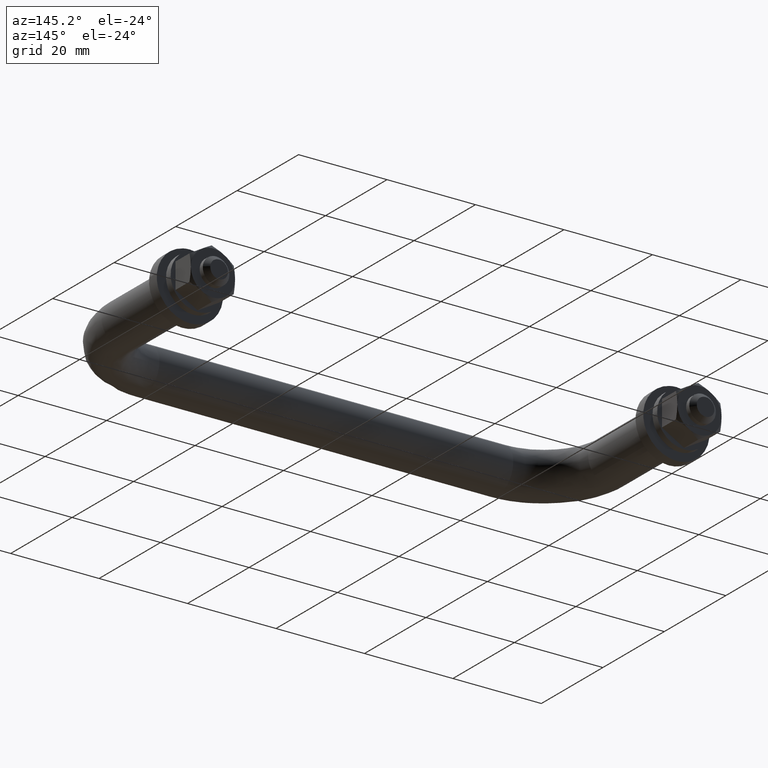
[diagram: clean part render]
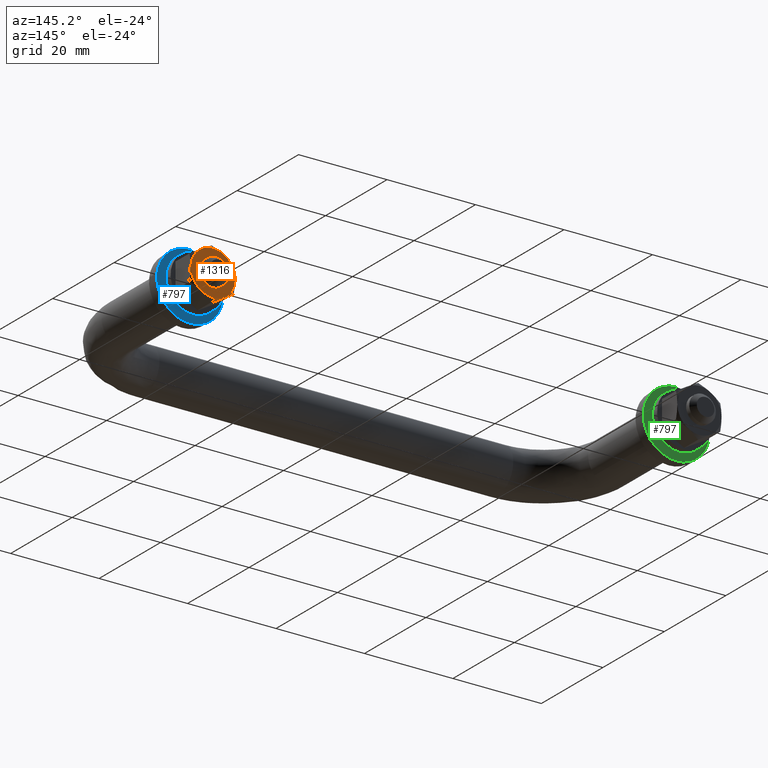
[diagram: same view with three faces highlighted in distinct colors, each labeled with its STEP entity id]
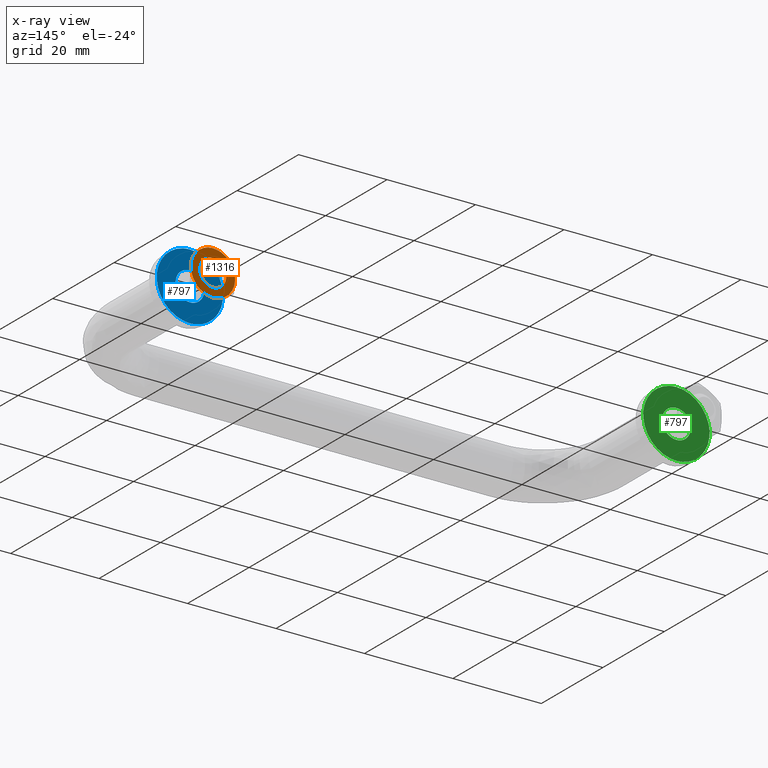
[diagram: x-ray of the same camera — body ghosted, the three highlighted faces saturated]
A machine part, auxiliary view with three faces highlighted in distinct colors.
The next image is the same camera in x-ray (body ghosted, the three faces saturated) — at least one of them is partly hidden behind the body in this view.
Their STEP definitions:

[orange] entity #1316 — the highlighted face is a freeform B-spline surface patch.
#895=CARTESIAN_POINT('',(2.994404395243879,9.000000000000117,-0.183145618959712));
#896=VERTEX_POINT('',#895);
#902=CARTESIAN_POINT('',(0.0,9.000000000000119,-3.0));
#903=VERTEX_POINT('',#902);
#904=CARTESIAN_POINT('',(0.0,9.000000000000119,-3.0));
#905=CARTESIAN_POINT('',(2.822118200046421,9.000000000000119,-3.0));
#906=CARTESIAN_POINT('',(2.994404395243879,9.000000000000117,-0.183145618959712));
#914=(BOUNDED_CURVE()B_SPLINE_CURVE(2,(#904,#905,#906),.UNSPECIFIED.,.F.,.U.)B_SPLINE_CURVE_WITH_KNOTS((3,3),(0.500000000000000,0.739332962201040),.UNSPECIFIED.)CURVE()GEOMETRIC_REPRESENTATION_ITEM()RATIONAL_B_SPLINE_CURVE((1.0,0.719603993331116,0.976072041585484))REPRESENTATION_ITEM(''));
#915=EDGE_CURVE('',#903,#896,#914,.T.);
#917=CARTESIAN_POINT('',(-2.979028579072036,9.000000000000119,0.354102704129811));
#918=VERTEX_POINT('',#917);
#919=CARTESIAN_POINT('',(-2.979028579072035,9.000000000000119,0.354102704129811));
#920=CARTESIAN_POINT('',(-3.000000000000000,9.000000000000119,0.177672359116953));
#921=CARTESIAN_POINT('',(-3.0,9.000000000000119,0.0));
#922=CARTESIAN_POINT('',(-3.0,9.000000000000119,-3.0));
#923=CARTESIAN_POINT('',(0.0,9.000000000000119,-3.0));
#931=(BOUNDED_CURVE()B_SPLINE_CURVE(2,(#919,#920,#921,#922,#923),.UNSPECIFIED.,.F.,.U.)B_SPLINE_CURVE_WITH_KNOTS((3,2,3),(0.229562473497543,0.250000000000000,0.500000000000000),.UNSPECIFIED.)CURVE()GEOMETRIC_REPRESENTATION_ITEM()RATIONAL_B_SPLINE_CURVE((0.956026754152407,0.976055948312440,1.0,0.707106781186548,1.0))REPRESENTATION_ITEM(''));
#932=EDGE_CURVE('',#918,#903,#931,.T.);
#976=CARTESIAN_POINT('',(0.0,9.000000000000119,3.0));
#977=VERTEX_POINT('',#976);
#978=CARTESIAN_POINT('',(0.0,9.000000000000119,3.0));
#979=CARTESIAN_POINT('',(-2.664523577566709,9.000000000000119,3.000000000000000));
#980=CARTESIAN_POINT('',(-2.979028579072036,9.000000000000119,0.354102704129811));
#988=(BOUNDED_CURVE()B_SPLINE_CURVE(2,(#978,#979,#980),.UNSPECIFIED.,.F.,.U.)B_SPLINE_CURVE_WITH_KNOTS((3,3),(0.0,0.229562473497543),.UNSPECIFIED.)CURVE()GEOMETRIC_REPRESENTATION_ITEM()RATIONAL_B_SPLINE_CURVE((1.0,0.731050832874107,0.956026754152407))REPRESENTATION_ITEM(''));
#989=EDGE_CURVE('',#977,#918,#988,.T.);
#991=CARTESIAN_POINT('',(2.994404395243879,9.000000000000117,-0.183145618959712));
#992=CARTESIAN_POINT('',(3.000000000000000,9.000000000000121,-0.091658290251904));
#993=CARTESIAN_POINT('',(3.0,9.000000000000119,0.0));
#994=CARTESIAN_POINT('',(3.0,9.000000000000119,3.0));
#995=CARTESIAN_POINT('',(0.0,9.000000000000119,3.0));
#1003=(BOUNDED_CURVE()B_SPLINE_CURVE(2,(#991,#992,#993,#994,#995),.UNSPECIFIED.,.F.,.U.)B_SPLINE_CURVE_WITH_KNOTS((3,2,3),(0.739332962201040,0.750000000000000,1.0),.UNSPECIFIED.)CURVE()GEOMETRIC_REPRESENTATION_ITEM()RATIONAL_B_SPLINE_CURVE((0.976072041585484,0.987502787855431,1.0,0.707106781186548,1.0))REPRESENTATION_ITEM(''));
#1004=EDGE_CURVE('',#896,#977,#1003,.T.);
#1045=CARTESIAN_POINT('',(-5.0,9.0,-2.571673E-015));
#1046=VERTEX_POINT('',#1045);
#1060=CARTESIAN_POINT('',(5.0,9.0,-2.571673E-015));
#1061=VERTEX_POINT('',#1060);
#1062=CARTESIAN_POINT('',(5.0,9.0,-2.571673E-015));
#1063=CARTESIAN_POINT('',(5.000000000000001,9.000000000000002,-5.000000000000003));
#1064=CARTESIAN_POINT('',(0.0,9.0,-5.000000000000003));
#1065=CARTESIAN_POINT('',(-5.000000000000001,9.000000000000002,-5.000000000000003));
#1066=CARTESIAN_POINT('',(-5.0,9.0,-2.571673E-015));
#1074=(BOUNDED_CURVE()B_SPLINE_CURVE(2,(#1062,#1063,#1064,#1065,#1066),.UNSPECIFIED.,.F.,.U.)B_SPLINE_CURVE_WITH_KNOTS((3,2,3),(0.0,0.500000000000000,1.0),.UNSPECIFIED.)CURVE()GEOMETRIC_REPRESENTATION_ITEM()RATIONAL_B_SPLINE_CURVE((1.0,0.707106781186548,1.0,0.707106781186548,1.0))REPRESENTATION_ITEM(''));
#1075=EDGE_CURVE('',#1061,#1046,#1074,.T.);
#1212=CARTESIAN_POINT('',(5.0,9.0,-2.571673E-015));
#1213=CARTESIAN_POINT('',(5.000000000000001,9.000000000000002,4.999999999999997));
#1214=CARTESIAN_POINT('',(0.0,9.0,4.999999999999997));
#1215=CARTESIAN_POINT('',(-5.000000000000001,9.000000000000002,4.999999999999997));
#1216=CARTESIAN_POINT('',(-5.0,9.0,-2.571673E-015));
#1224=(BOUNDED_CURVE()B_SPLINE_CURVE(2,(#1212,#1213,#1214,#1215,#1216),.UNSPECIFIED.,.F.,.U.)B_SPLINE_CURVE_WITH_KNOTS((3,2,3),(0.0,0.500000000000000,1.0),.UNSPECIFIED.)CURVE()GEOMETRIC_REPRESENTATION_ITEM()RATIONAL_B_SPLINE_CURVE((1.0,0.707106781186548,1.0,0.707106781186548,1.0))REPRESENTATION_ITEM(''));
#1225=EDGE_CURVE('',#1061,#1046,#1224,.T.);
#1301=CARTESIAN_POINT('',(-5.499499980618060,9.0,5.499499980617824));
#1302=CARTESIAN_POINT('',(5.499500248838961,9.0,5.499499980617824));
#1303=CARTESIAN_POINT('',(-5.499499980618060,9.0,-5.499500248838730));
#1304=CARTESIAN_POINT('',(5.499500248838961,9.0,-5.499500248838730));
#1305=B_SPLINE_SURFACE_WITH_KNOTS('',1,1,((#1301,#1303),(#1302,#1304)),.UNSPECIFIED.,.F.,.F.,.U.,(2,2),(2,2),(0.0,10.999000229457019),(0.0,10.999000229456550),.UNSPECIFIED.);
#1306=ORIENTED_EDGE('',*,*,#1225,.F.);
#1307=ORIENTED_EDGE('',*,*,#1075,.T.);
#1308=EDGE_LOOP('',(#1306,#1307));
#1309=FACE_OUTER_BOUND('',#1308,.T.);
#1310=ORIENTED_EDGE('',*,*,#915,.T.);
#1311=ORIENTED_EDGE('',*,*,#1004,.T.);
#1312=ORIENTED_EDGE('',*,*,#989,.T.);
#1313=ORIENTED_EDGE('',*,*,#932,.T.);
#1314=EDGE_LOOP('',(#1310,#1311,#1312,#1313));
#1315=FACE_BOUND('',#1314,.T.);
#1316=ADVANCED_FACE('',(#1309,#1315),#1305,.T.);

[blue] entity #797 — the highlighted face is a freeform B-spline surface patch.
#79=CARTESIAN_POINT('',(7.451018950764516,1.500000000000225,0.855754985581764));
#80=VERTEX_POINT('',#79);
#86=CARTESIAN_POINT('',(4.898425E-016,1.500000000000225,7.500000000000000));
#87=VERTEX_POINT('',#86);
#88=CARTESIAN_POINT('',(7.451018950764516,1.500000000000225,0.855754985581764));
#89=CARTESIAN_POINT('',(6.687922542839340,1.500000000000225,7.499999999999998));
#90=CARTESIAN_POINT('',(4.898425E-016,1.500000000000225,7.500000000000000));
#98=(BOUNDED_CURVE()B_SPLINE_CURVE(2,(#88,#89,#90),.UNSPECIFIED.,.F.,.U.)B_SPLINE_CURVE_WITH_KNOTS((3,3),(0.269767755877929,0.500000000000000),.UNSPECIFIED.)CURVE()GEOMETRIC_REPRESENTATION_ITEM()RATIONAL_B_SPLINE_CURVE((0.957343736458059,0.730266147777769,1.0))REPRESENTATION_ITEM(''));
#99=EDGE_CURVE('',#80,#87,#98,.T.);
#101=CARTESIAN_POINT('',(-7.486010988137359,1.500000000000225,0.457864046947005));
#102=VERTEX_POINT('',#101);
#103=CARTESIAN_POINT('',(4.898425E-016,1.500000000000225,7.500000000000000));
#104=CARTESIAN_POINT('',(-7.055295500970185,1.500000000000226,7.500000000000000));
#105=CARTESIAN_POINT('',(-7.486010988137359,1.500000000000226,0.457864046947005));
#113=(BOUNDED_CURVE()B_SPLINE_CURVE(2,(#103,#104,#105),.UNSPECIFIED.,.F.,.U.)B_SPLINE_CURVE_WITH_KNOTS((3,3),(0.500000000000000,0.739332962221890),.UNSPECIFIED.)CURVE()GEOMETRIC_REPRESENTATION_ITEM()RATIONAL_B_SPLINE_CURVE((1.0,0.719603993306689,0.976072041630170))REPRESENTATION_ITEM(''));
#114=EDGE_CURVE('',#87,#102,#113,.T.);
#209=CARTESIAN_POINT('',(4.898425E-016,1.500000000000225,-7.500000000000000));
#210=VERTEX_POINT('',#209);
#211=CARTESIAN_POINT('',(-7.486010988137359,1.500000000000225,0.457864046947005));
#212=CARTESIAN_POINT('',(-7.499999999999999,1.500000000000225,0.229145725176216));
#213=CARTESIAN_POINT('',(-7.499999999999999,1.500000000000225,0.0));
#214=CARTESIAN_POINT('',(-7.500000000000000,1.500000000000225,-7.500000000000000));
#215=CARTESIAN_POINT('',(4.898425E-016,1.500000000000225,-7.500000000000000));
#223=(BOUNDED_CURVE()B_SPLINE_CURVE(2,(#211,#212,#213,#214,#215),.UNSPECIFIED.,.F.,.U.)B_SPLINE_CURVE_WITH_KNOTS((3,2,3),(0.739332962221889,0.750000000000000,1.0),.UNSPECIFIED.)CURVE()GEOMETRIC_REPRESENTATION_ITEM()RATIONAL_B_SPLINE_CURVE((0.976072041630168,0.987502787879857,1.0,0.707106781186547,1.0))REPRESENTATION_ITEM(''));
#224=EDGE_CURVE('',#102,#210,#223,.T.);
#226=CARTESIAN_POINT('',(4.898425E-016,1.500000000000225,-7.500000000000000));
#227=CARTESIAN_POINT('',(7.500000000000004,1.500000000000225,-7.500000000000000));
#228=CARTESIAN_POINT('',(7.500000000000001,1.500000000000225,0.0));
#229=CARTESIAN_POINT('',(7.500000000000002,1.500000000000225,0.429279262719043));
#230=CARTESIAN_POINT('',(7.451018950764516,1.500000000000225,0.855754985581764));
#238=(BOUNDED_CURVE()B_SPLINE_CURVE(2,(#226,#227,#228,#229,#230),.UNSPECIFIED.,.F.,.U.)B_SPLINE_CURVE_WITH_KNOTS((3,2,3),(0.0,0.250000000000000,0.269767755877929),.UNSPECIFIED.)CURVE()GEOMETRIC_REPRESENTATION_ITEM()RATIONAL_B_SPLINE_CURVE((1.0,0.707106781186547,1.0,0.976840633408779,0.957343736458059))REPRESENTATION_ITEM(''));
#239=EDGE_CURVE('',#210,#80,#238,.T.);
#614=CARTESIAN_POINT('',(-3.243938094856484,1.500000000000225,0.198407753726704));
#615=VERTEX_POINT('',#614);
#621=CARTESIAN_POINT('',(4.898425E-016,1.500000000000225,3.250000000000000));
#622=VERTEX_POINT('',#621);
#623=CARTESIAN_POINT('',(4.898425E-016,1.500000000000225,3.250000000000000));
#624=CARTESIAN_POINT('',(-3.057294716993268,1.500000000000226,3.250000000000000));
#625=CARTESIAN_POINT('',(-3.243938094856484,1.500000000000226,0.198407753726704));
#633=(BOUNDED_CURVE()B_SPLINE_CURVE(2,(#623,#624,#625),.UNSPECIFIED.,.F.,.U.)B_SPLINE_CURVE_WITH_KNOTS((3,3),(0.500000000000000,0.739332962216605),.UNSPECIFIED.)CURVE()GEOMETRIC_REPRESENTATION_ITEM()RATIONAL_B_SPLINE_CURVE((1.0,0.719603993312880,0.976072041618844))REPRESENTATION_ITEM(''));
#634=EDGE_CURVE('',#622,#615,#633,.T.);
#636=CARTESIAN_POINT('',(3.227280960643510,1.500000000000225,-0.383611262957571));
#637=VERTEX_POINT('',#636);
#638=CARTESIAN_POINT('',(3.227280960643510,1.500000000000226,-0.383611262957571));
#639=CARTESIAN_POINT('',(3.250000000000000,1.500000000000225,-0.192478389195230));
#640=CARTESIAN_POINT('',(3.250000000000000,1.500000000000225,0.0));
#641=CARTESIAN_POINT('',(3.250000000000000,1.500000000000225,3.250000000000000));
#642=CARTESIAN_POINT('',(4.898425E-016,1.500000000000225,3.250000000000000));
#650=(BOUNDED_CURVE()B_SPLINE_CURVE(2,(#638,#639,#640,#641,#642),.UNSPECIFIED.,.F.,.U.)B_SPLINE_CURVE_WITH_KNOTS((3,2,3),(0.229562473481804,0.250000000000000,0.500000000000000),.UNSPECIFIED.)CURVE()GEOMETRIC_REPRESENTATION_ITEM()RATIONAL_B_SPLINE_CURVE((0.956026754121557,0.976055948294001,1.0,0.707106781186547,1.0))REPRESENTATION_ITEM(''));
#651=EDGE_CURVE('',#637,#622,#650,.T.);
#695=CARTESIAN_POINT('',(4.898425E-016,1.500000000000225,-3.250000000000000));
#696=VERTEX_POINT('',#695);
#697=CARTESIAN_POINT('',(4.898425E-016,1.500000000000225,-3.250000000000000));
#698=CARTESIAN_POINT('',(2.886567208759887,1.500000000000225,-3.250000000000000));
#699=CARTESIAN_POINT('',(3.227280960643510,1.500000000000226,-0.383611262957571));
#707=(BOUNDED_CURVE()B_SPLINE_CURVE(2,(#697,#698,#699),.UNSPECIFIED.,.F.,.U.)B_SPLINE_CURVE_WITH_KNOTS((3,3),(0.0,0.229562473481804),.UNSPECIFIED.)CURVE()GEOMETRIC_REPRESENTATION_ITEM()RATIONAL_B_SPLINE_CURVE((1.0,0.731050832892546,0.956026754121557))REPRESENTATION_ITEM(''));
#708=EDGE_CURVE('',#696,#637,#707,.T.);
#710=CARTESIAN_POINT('',(-3.243938094856484,1.500000000000225,0.198407753726704));
#711=CARTESIAN_POINT('',(-3.250000000000000,1.500000000000225,0.099296480959501));
#712=CARTESIAN_POINT('',(-3.250000000000000,1.500000000000225,0.0));
#713=CARTESIAN_POINT('',(-3.250000000000000,1.500000000000225,-3.250000000000000));
#714=CARTESIAN_POINT('',(4.898425E-016,1.500000000000225,-3.250000000000000));
#722=(BOUNDED_CURVE()B_SPLINE_CURVE(2,(#710,#711,#712,#713,#714),.UNSPECIFIED.,.F.,.U.)B_SPLINE_CURVE_WITH_KNOTS((3,2,3),(0.739332962216605,0.750000000000000,1.0),.UNSPECIFIED.)CURVE()GEOMETRIC_REPRESENTATION_ITEM()RATIONAL_B_SPLINE_CURVE((0.976072041618844,0.987502787873667,1.0,0.707106781186547,1.0))REPRESENTATION_ITEM(''));
#723=EDGE_CURVE('',#615,#696,#722,.T.);
#780=CARTESIAN_POINT('',(-8.249073014674979,1.500000000000225,-8.249249970927089));
#781=CARTESIAN_POINT('',(-8.249073014674979,1.500000000000225,8.249250373258443));
#782=CARTESIAN_POINT('',(8.249225095926123,1.500000000000225,-8.249249970927089));
#783=CARTESIAN_POINT('',(8.249225095926123,1.500000000000225,8.249250373258443));
#784=B_SPLINE_SURFACE_WITH_KNOTS('',1,1,((#780,#782),(#781,#783)),.UNSPECIFIED.,.F.,.F.,.U.,(2,2),(2,2),(0.0,16.498500344185530),(0.0,16.498298110601102),.UNSPECIFIED.);
#785=ORIENTED_EDGE('',*,*,#224,.F.);
#786=ORIENTED_EDGE('',*,*,#114,.F.);
#787=ORIENTED_EDGE('',*,*,#99,.F.);
#788=ORIENTED_EDGE('',*,*,#239,.F.);
#789=EDGE_LOOP('',(#785,#786,#787,#788));
#790=FACE_OUTER_BOUND('',#789,.T.);
#791=ORIENTED_EDGE('',*,*,#634,.T.);
#792=ORIENTED_EDGE('',*,*,#723,.T.);
#793=ORIENTED_EDGE('',*,*,#708,.T.);
#794=ORIENTED_EDGE('',*,*,#651,.T.);
#795=EDGE_LOOP('',(#791,#792,#793,#794));
#796=FACE_BOUND('',#795,.T.);
#797=ADVANCED_FACE('',(#790,#796),#784,.T.);

[green] entity #797 — the highlighted face is a freeform B-spline surface patch.
#79=CARTESIAN_POINT('',(7.451018950764516,1.500000000000225,0.855754985581764));
#80=VERTEX_POINT('',#79);
#86=CARTESIAN_POINT('',(4.898425E-016,1.500000000000225,7.500000000000000));
#87=VERTEX_POINT('',#86);
#88=CARTESIAN_POINT('',(7.451018950764516,1.500000000000225,0.855754985581764));
#89=CARTESIAN_POINT('',(6.687922542839340,1.500000000000225,7.499999999999998));
#90=CARTESIAN_POINT('',(4.898425E-016,1.500000000000225,7.500000000000000));
#98=(BOUNDED_CURVE()B_SPLINE_CURVE(2,(#88,#89,#90),.UNSPECIFIED.,.F.,.U.)B_SPLINE_CURVE_WITH_KNOTS((3,3),(0.269767755877929,0.500000000000000),.UNSPECIFIED.)CURVE()GEOMETRIC_REPRESENTATION_ITEM()RATIONAL_B_SPLINE_CURVE((0.957343736458059,0.730266147777769,1.0))REPRESENTATION_ITEM(''));
#99=EDGE_CURVE('',#80,#87,#98,.T.);
#101=CARTESIAN_POINT('',(-7.486010988137359,1.500000000000225,0.457864046947005));
#102=VERTEX_POINT('',#101);
#103=CARTESIAN_POINT('',(4.898425E-016,1.500000000000225,7.500000000000000));
#104=CARTESIAN_POINT('',(-7.055295500970185,1.500000000000226,7.500000000000000));
#105=CARTESIAN_POINT('',(-7.486010988137359,1.500000000000226,0.457864046947005));
#113=(BOUNDED_CURVE()B_SPLINE_CURVE(2,(#103,#104,#105),.UNSPECIFIED.,.F.,.U.)B_SPLINE_CURVE_WITH_KNOTS((3,3),(0.500000000000000,0.739332962221890),.UNSPECIFIED.)CURVE()GEOMETRIC_REPRESENTATION_ITEM()RATIONAL_B_SPLINE_CURVE((1.0,0.719603993306689,0.976072041630170))REPRESENTATION_ITEM(''));
#114=EDGE_CURVE('',#87,#102,#113,.T.);
#209=CARTESIAN_POINT('',(4.898425E-016,1.500000000000225,-7.500000000000000));
#210=VERTEX_POINT('',#209);
#211=CARTESIAN_POINT('',(-7.486010988137359,1.500000000000225,0.457864046947005));
#212=CARTESIAN_POINT('',(-7.499999999999999,1.500000000000225,0.229145725176216));
#213=CARTESIAN_POINT('',(-7.499999999999999,1.500000000000225,0.0));
#214=CARTESIAN_POINT('',(-7.500000000000000,1.500000000000225,-7.500000000000000));
#215=CARTESIAN_POINT('',(4.898425E-016,1.500000000000225,-7.500000000000000));
#223=(BOUNDED_CURVE()B_SPLINE_CURVE(2,(#211,#212,#213,#214,#215),.UNSPECIFIED.,.F.,.U.)B_SPLINE_CURVE_WITH_KNOTS((3,2,3),(0.739332962221889,0.750000000000000,1.0),.UNSPECIFIED.)CURVE()GEOMETRIC_REPRESENTATION_ITEM()RATIONAL_B_SPLINE_CURVE((0.976072041630168,0.987502787879857,1.0,0.707106781186547,1.0))REPRESENTATION_ITEM(''));
#224=EDGE_CURVE('',#102,#210,#223,.T.);
#226=CARTESIAN_POINT('',(4.898425E-016,1.500000000000225,-7.500000000000000));
#227=CARTESIAN_POINT('',(7.500000000000004,1.500000000000225,-7.500000000000000));
#228=CARTESIAN_POINT('',(7.500000000000001,1.500000000000225,0.0));
#229=CARTESIAN_POINT('',(7.500000000000002,1.500000000000225,0.429279262719043));
#230=CARTESIAN_POINT('',(7.451018950764516,1.500000000000225,0.855754985581764));
#238=(BOUNDED_CURVE()B_SPLINE_CURVE(2,(#226,#227,#228,#229,#230),.UNSPECIFIED.,.F.,.U.)B_SPLINE_CURVE_WITH_KNOTS((3,2,3),(0.0,0.250000000000000,0.269767755877929),.UNSPECIFIED.)CURVE()GEOMETRIC_REPRESENTATION_ITEM()RATIONAL_B_SPLINE_CURVE((1.0,0.707106781186547,1.0,0.976840633408779,0.957343736458059))REPRESENTATION_ITEM(''));
#239=EDGE_CURVE('',#210,#80,#238,.T.);
#614=CARTESIAN_POINT('',(-3.243938094856484,1.500000000000225,0.198407753726704));
#615=VERTEX_POINT('',#614);
#621=CARTESIAN_POINT('',(4.898425E-016,1.500000000000225,3.250000000000000));
#622=VERTEX_POINT('',#621);
#623=CARTESIAN_POINT('',(4.898425E-016,1.500000000000225,3.250000000000000));
#624=CARTESIAN_POINT('',(-3.057294716993268,1.500000000000226,3.250000000000000));
#625=CARTESIAN_POINT('',(-3.243938094856484,1.500000000000226,0.198407753726704));
#633=(BOUNDED_CURVE()B_SPLINE_CURVE(2,(#623,#624,#625),.UNSPECIFIED.,.F.,.U.)B_SPLINE_CURVE_WITH_KNOTS((3,3),(0.500000000000000,0.739332962216605),.UNSPECIFIED.)CURVE()GEOMETRIC_REPRESENTATION_ITEM()RATIONAL_B_SPLINE_CURVE((1.0,0.719603993312880,0.976072041618844))REPRESENTATION_ITEM(''));
#634=EDGE_CURVE('',#622,#615,#633,.T.);
#636=CARTESIAN_POINT('',(3.227280960643510,1.500000000000225,-0.383611262957571));
#637=VERTEX_POINT('',#636);
#638=CARTESIAN_POINT('',(3.227280960643510,1.500000000000226,-0.383611262957571));
#639=CARTESIAN_POINT('',(3.250000000000000,1.500000000000225,-0.192478389195230));
#640=CARTESIAN_POINT('',(3.250000000000000,1.500000000000225,0.0));
#641=CARTESIAN_POINT('',(3.250000000000000,1.500000000000225,3.250000000000000));
#642=CARTESIAN_POINT('',(4.898425E-016,1.500000000000225,3.250000000000000));
#650=(BOUNDED_CURVE()B_SPLINE_CURVE(2,(#638,#639,#640,#641,#642),.UNSPECIFIED.,.F.,.U.)B_SPLINE_CURVE_WITH_KNOTS((3,2,3),(0.229562473481804,0.250000000000000,0.500000000000000),.UNSPECIFIED.)CURVE()GEOMETRIC_REPRESENTATION_ITEM()RATIONAL_B_SPLINE_CURVE((0.956026754121557,0.976055948294001,1.0,0.707106781186547,1.0))REPRESENTATION_ITEM(''));
#651=EDGE_CURVE('',#637,#622,#650,.T.);
#695=CARTESIAN_POINT('',(4.898425E-016,1.500000000000225,-3.250000000000000));
#696=VERTEX_POINT('',#695);
#697=CARTESIAN_POINT('',(4.898425E-016,1.500000000000225,-3.250000000000000));
#698=CARTESIAN_POINT('',(2.886567208759887,1.500000000000225,-3.250000000000000));
#699=CARTESIAN_POINT('',(3.227280960643510,1.500000000000226,-0.383611262957571));
#707=(BOUNDED_CURVE()B_SPLINE_CURVE(2,(#697,#698,#699),.UNSPECIFIED.,.F.,.U.)B_SPLINE_CURVE_WITH_KNOTS((3,3),(0.0,0.229562473481804),.UNSPECIFIED.)CURVE()GEOMETRIC_REPRESENTATION_ITEM()RATIONAL_B_SPLINE_CURVE((1.0,0.731050832892546,0.956026754121557))REPRESENTATION_ITEM(''));
#708=EDGE_CURVE('',#696,#637,#707,.T.);
#710=CARTESIAN_POINT('',(-3.243938094856484,1.500000000000225,0.198407753726704));
#711=CARTESIAN_POINT('',(-3.250000000000000,1.500000000000225,0.099296480959501));
#712=CARTESIAN_POINT('',(-3.250000000000000,1.500000000000225,0.0));
#713=CARTESIAN_POINT('',(-3.250000000000000,1.500000000000225,-3.250000000000000));
#714=CARTESIAN_POINT('',(4.898425E-016,1.500000000000225,-3.250000000000000));
#722=(BOUNDED_CURVE()B_SPLINE_CURVE(2,(#710,#711,#712,#713,#714),.UNSPECIFIED.,.F.,.U.)B_SPLINE_CURVE_WITH_KNOTS((3,2,3),(0.739332962216605,0.750000000000000,1.0),.UNSPECIFIED.)CURVE()GEOMETRIC_REPRESENTATION_ITEM()RATIONAL_B_SPLINE_CURVE((0.976072041618844,0.987502787873667,1.0,0.707106781186547,1.0))REPRESENTATION_ITEM(''));
#723=EDGE_CURVE('',#615,#696,#722,.T.);
#780=CARTESIAN_POINT('',(-8.249073014674979,1.500000000000225,-8.249249970927089));
#781=CARTESIAN_POINT('',(-8.249073014674979,1.500000000000225,8.249250373258443));
#782=CARTESIAN_POINT('',(8.249225095926123,1.500000000000225,-8.249249970927089));
#783=CARTESIAN_POINT('',(8.249225095926123,1.500000000000225,8.249250373258443));
#784=B_SPLINE_SURFACE_WITH_KNOTS('',1,1,((#780,#782),(#781,#783)),.UNSPECIFIED.,.F.,.F.,.U.,(2,2),(2,2),(0.0,16.498500344185530),(0.0,16.498298110601102),.UNSPECIFIED.);
#785=ORIENTED_EDGE('',*,*,#224,.F.);
#786=ORIENTED_EDGE('',*,*,#114,.F.);
#787=ORIENTED_EDGE('',*,*,#99,.F.);
#788=ORIENTED_EDGE('',*,*,#239,.F.);
#789=EDGE_LOOP('',(#785,#786,#787,#788));
#790=FACE_OUTER_BOUND('',#789,.T.);
#791=ORIENTED_EDGE('',*,*,#634,.T.);
#792=ORIENTED_EDGE('',*,*,#723,.T.);
#793=ORIENTED_EDGE('',*,*,#708,.T.);
#794=ORIENTED_EDGE('',*,*,#651,.T.);
#795=EDGE_LOOP('',(#791,#792,#793,#794));
#796=FACE_BOUND('',#795,.T.);
#797=ADVANCED_FACE('',(#790,#796),#784,.T.);